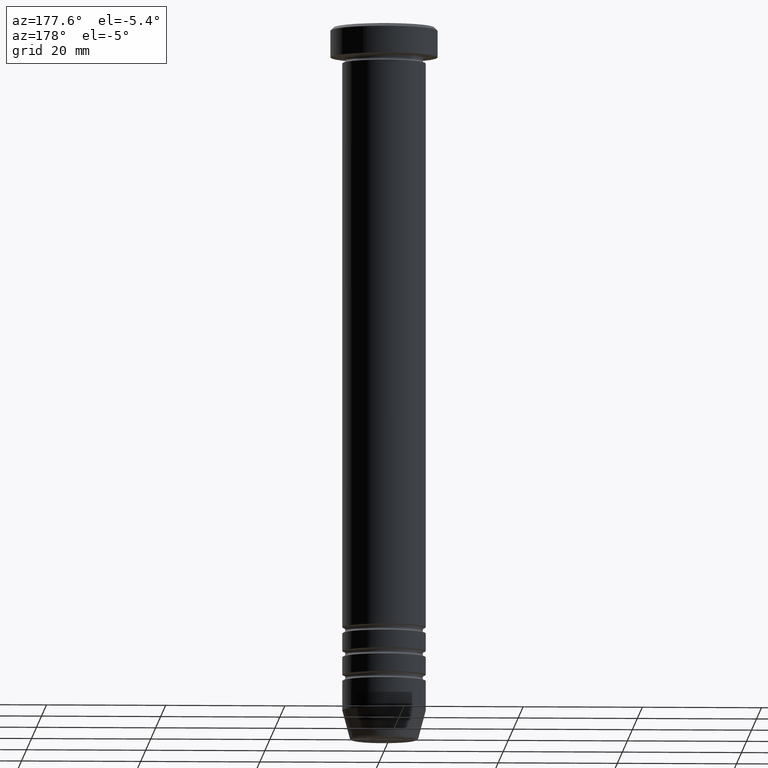
[diagram: clean part render]
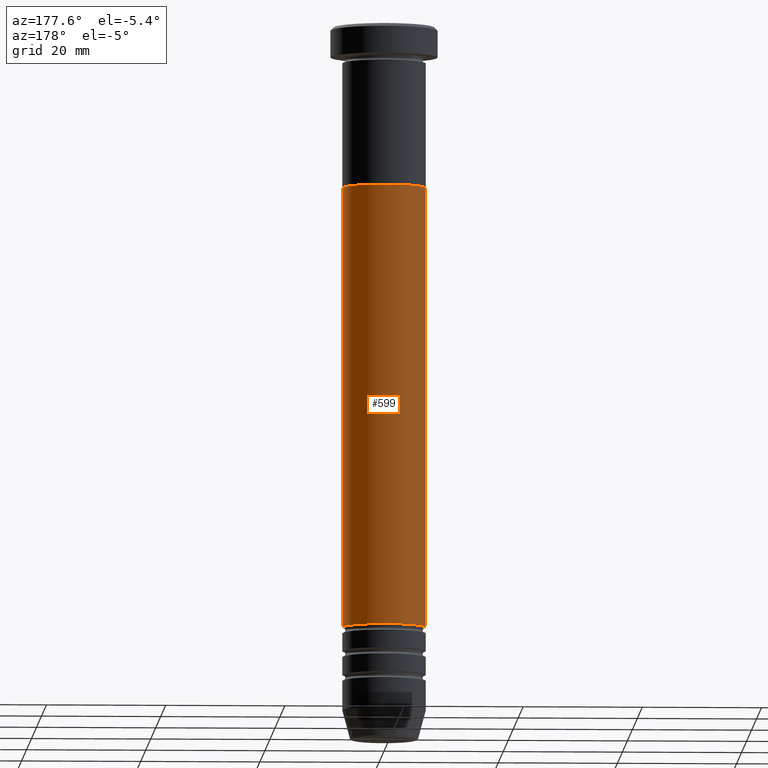
[diagram: same view with one face highlighted and labeled with its STEP entity id]
A machine part, auxiliary view. The second image highlights one B-rep face of the part: STEP entity #599.
In plain terms, the highlighted cylindrical surface (partial cylindrical patch) has radius 7 mm, axis along (-0, -0, 1).
Its self-contained STEP definition (entity closure, byte-faithful):
#7 = CIRCLE ( 'NONE', #608, 7.000000000000000000 ) ;
#10 = VERTEX_POINT ( 'NONE', #514 ) ;
#51 = DIRECTION ( 'NONE',  ( 1.000000000000000000, 0.000000000000000000, 0.000000000000000000 ) ) ;
#92 = AXIS2_PLACEMENT_3D ( 'NONE', #817, #641, #248 ) ;
#126 = DIRECTION ( 'NONE',  ( -0.000000000000000000, -0.000000000000000000, 1.000000000000000000 ) ) ;
#164 = LINE ( 'NONE', #936, #795 ) ;
#248 = DIRECTION ( 'NONE',  ( 1.000000000000000000, 0.000000000000000000, 0.000000000000000000 ) ) ;
#271 = EDGE_CURVE ( 'NONE', #10, #908, #740, .T. ) ;
#302 = EDGE_CURVE ( 'NONE', #781, #636, #7, .T. ) ;
#309 = CARTESIAN_POINT ( 'NONE',  ( -7.000000000000000000, 8.572527594031472204E-16, -27.00000000000000000 ) ) ;
#368 = LINE ( 'NONE', #513, #893 ) ;
#376 = DIRECTION ( 'NONE',  ( 1.000000000000000000, 0.000000000000000000, 0.000000000000000000 ) ) ;
#387 = AXIS2_PLACEMENT_3D ( 'NONE', #603, #530, #51 ) ;
#513 = CARTESIAN_POINT ( 'NONE',  ( -6.999999999999996447, 8.572527594031468259E-16, 0.000000000000000000 ) ) ;
#514 = CARTESIAN_POINT ( 'NONE',  ( 6.999999999999992895, 0.000000000000000000, -100.9999999999999858 ) ) ;
#530 = DIRECTION ( 'NONE',  ( -0.000000000000000000, -0.000000000000000000, 1.000000000000000000 ) ) ;
#562 = ORIENTED_EDGE ( 'NONE', *, *, #271, .T. ) ;
#599 = ADVANCED_FACE ( 'NONE', ( #652 ), #1044, .T. ) ;
#603 = CARTESIAN_POINT ( 'NONE',  ( 0.000000000000000000, 0.000000000000000000, -100.9999999999999858 ) ) ;
#608 = AXIS2_PLACEMENT_3D ( 'NONE', #948, #943, #376 ) ;
#622 = CARTESIAN_POINT ( 'NONE',  ( -6.999999999999992895, 8.572527594031466287E-16, -100.9999999999999858 ) ) ;
#632 = EDGE_LOOP ( 'NONE', ( #562, #983, #737, #669 ) ) ;
#636 = VERTEX_POINT ( 'NONE', #309 ) ;
#641 = DIRECTION ( 'NONE',  ( -0.000000000000000000, -0.000000000000000000, 1.000000000000000000 ) ) ;
#652 = FACE_OUTER_BOUND ( 'NONE', #632, .T. ) ;
#665 = EDGE_CURVE ( 'NONE', #10, #781, #164, .T. ) ;
#669 = ORIENTED_EDGE ( 'NONE', *, *, #665, .F. ) ;
#737 = ORIENTED_EDGE ( 'NONE', *, *, #302, .F. ) ;
#740 = CIRCLE ( 'NONE', #387, 6.999999999999992895 ) ;
#748 = EDGE_CURVE ( 'NONE', #908, #636, #368, .T. ) ;
#781 = VERTEX_POINT ( 'NONE', #1003 ) ;
#795 = VECTOR ( 'NONE', #126, 1000.000000000000000 ) ;
#817 = CARTESIAN_POINT ( 'NONE',  ( 0.000000000000000000, 0.000000000000000000, 0.000000000000000000 ) ) ;
#840 = DIRECTION ( 'NONE',  ( -0.000000000000000000, -0.000000000000000000, 1.000000000000000000 ) ) ;
#893 = VECTOR ( 'NONE', #840, 1000.000000000000000 ) ;
#908 = VERTEX_POINT ( 'NONE', #622 ) ;
#936 = CARTESIAN_POINT ( 'NONE',  ( 6.999999999999996447, 0.000000000000000000, 0.000000000000000000 ) ) ;
#943 = DIRECTION ( 'NONE',  ( -0.000000000000000000, -0.000000000000000000, 1.000000000000000000 ) ) ;
#948 = CARTESIAN_POINT ( 'NONE',  ( 0.000000000000000000, 0.000000000000000000, -27.00000000000000000 ) ) ;
#983 = ORIENTED_EDGE ( 'NONE', *, *, #748, .T. ) ;
#1003 = CARTESIAN_POINT ( 'NONE',  ( 7.000000000000000000, 0.000000000000000000, -27.00000000000000000 ) ) ;
#1044 = CYLINDRICAL_SURFACE ( 'NONE', #92, 6.999999999999996447 ) ;